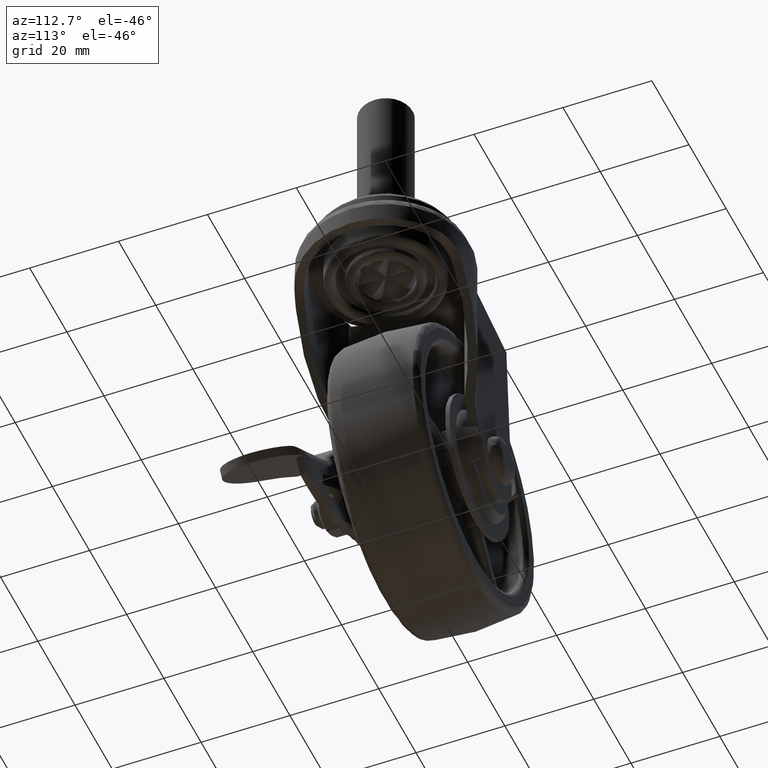
[diagram: clean part render]
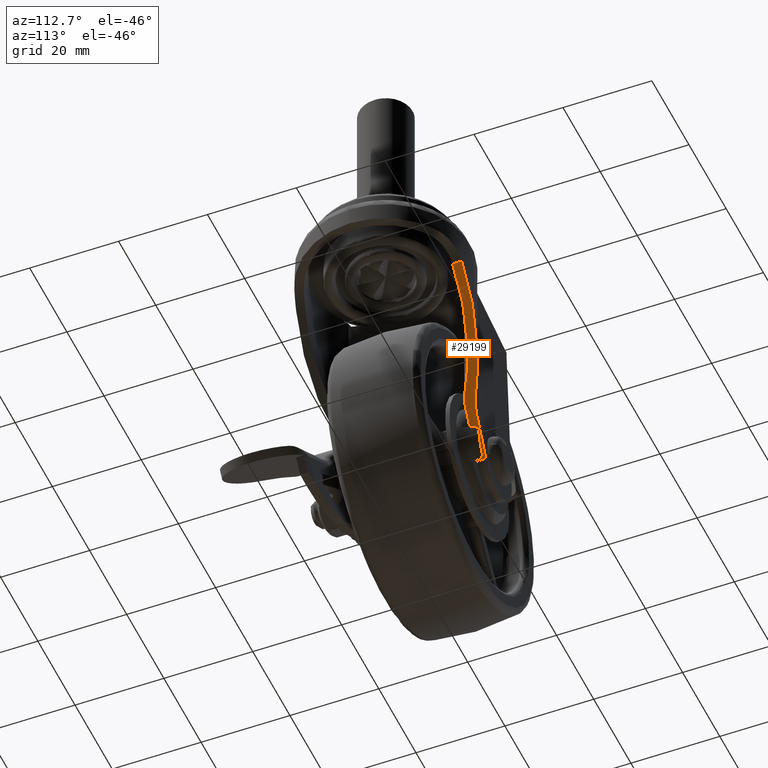
[diagram: same view with one face highlighted and labeled with its STEP entity id]
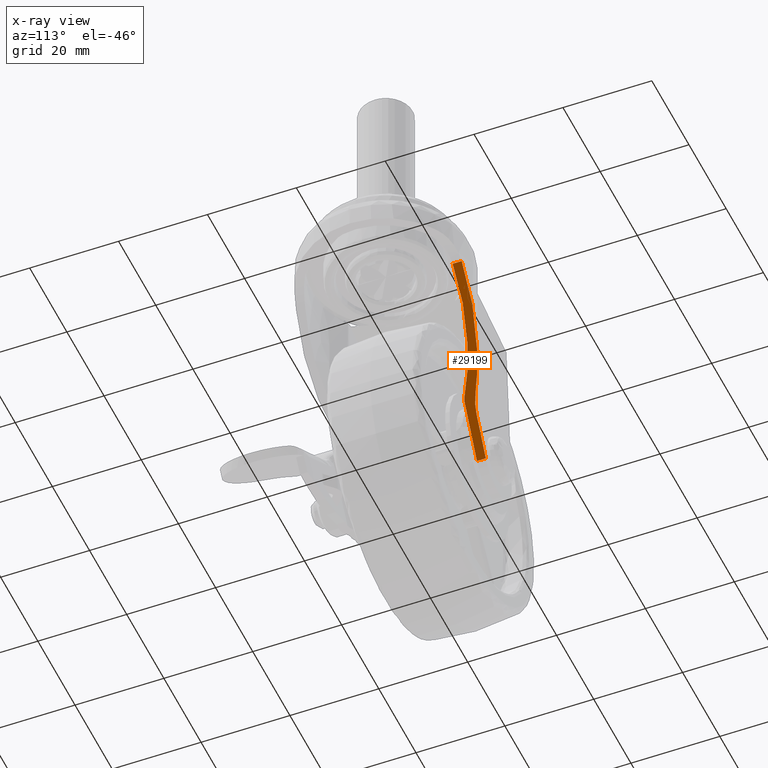
[diagram: x-ray of the same camera — body ghosted, the highlighted face saturated]
A machine part, auxiliary view. The second image highlights one B-rep face of the part: STEP entity #29199.
The next image is the same camera in x-ray: the body ghosted, the highlighted face saturated — about 0% of this face is hidden behind the body in this view.
In plain terms, the highlighted face is a freeform B-spline surface patch.
Its self-contained STEP definition (entity closure, byte-faithful):
#28799=CARTESIAN_POINT('',(13.302537420181221,13.212278166666680,7.495441232304141));
#28800=VERTEX_POINT('',#28799);
#28801=CARTESIAN_POINT('',(12.673274915486020,12.989471000000000,6.426265635622210));
#28802=VERTEX_POINT('',#28801);
#28803=CARTESIAN_POINT('',(13.302537420181221,13.212278166666680,7.495441232304141));
#28804=CARTESIAN_POINT('',(13.027351595094945,12.989471014923218,7.027874888306672));
#28805=CARTESIAN_POINT('',(12.673274957632851,12.989471000000000,6.426265707233631));
#28813=(BOUNDED_CURVE()B_SPLINE_CURVE(2,(#28803,#28804,#28805),.UNSPECIFIED.,.F.,.U.)CURVE()GEOMETRIC_REPRESENTATION_ITEM()QUASI_UNIFORM_CURVE()RATIONAL_B_SPLINE_CURVE((1.0,0.942653929036195,1.0))REPRESENTATION_ITEM(''));
#28814=EDGE_CURVE('',#28800,#28802,#28813,.T.);
#29125=CARTESIAN_POINT('',(28.815016485647192,12.689280747633729,33.852587792098923));
#29126=CARTESIAN_POINT('',(4.981249389495257,12.689280747633729,-6.643202066774914));
#29127=CARTESIAN_POINT('',(28.815016485647192,19.299476508982639,33.852587792098923));
#29128=CARTESIAN_POINT('',(4.981249389495257,19.299476508982639,-6.643202066774914));
#29129=B_SPLINE_SURFACE_WITH_KNOTS('',1,1,((#29125,#29127),(#29126,#29128)),.UNSPECIFIED.,.F.,.F.,.U.,(2,2),(2,2),(0.0,46.988907736695502),(0.0,6.610195761348914),.UNSPECIFIED.);
#29130=CARTESIAN_POINT('',(27.732648456351200,16.585154069266249,32.013543712851813));
#29131=VERTEX_POINT('',#29130);
#29132=CARTESIAN_POINT('',(27.732648456351232,16.585154069266249,32.013543712851742));
#29133=CARTESIAN_POINT('',(19.700895489298762,18.392777332158794,18.366847450360524));
#29134=CARTESIAN_POINT('',(13.302537420181221,13.212278166666680,7.495441232304126));
#29142=(BOUNDED_CURVE()B_SPLINE_CURVE(2,(#29132,#29133,#29134),.UNSPECIFIED.,.F.,.U.)CURVE()GEOMETRIC_REPRESENTATION_ITEM()QUASI_UNIFORM_CURVE()RATIONAL_B_SPLINE_CURVE((1.0,0.900017110385927,1.0))REPRESENTATION_ITEM(''));
#29143=EDGE_CURVE('',#29131,#28800,#29142,.T.);
#29144=ORIENTED_EDGE('',*,*,#29143,.T.);
#29145=ORIENTED_EDGE('',*,*,#28814,.T.);
#29146=CARTESIAN_POINT('',(6.063617999999909,12.989471000000020,-4.804157000000120));
#29147=VERTEX_POINT('',#29146);
#29148=CARTESIAN_POINT('',(12.673274915486020,12.989471000000000,6.426265635622210));
#29149=CARTESIAN_POINT('',(6.063617999999909,12.989471000000020,-4.804157000000120));
#29150=QUASI_UNIFORM_CURVE('',1,(#29148,#29149),.UNSPECIFIED.,.F.,.U.);
#29151=EDGE_CURVE('',#28802,#29147,#29150,.T.);
#29152=ORIENTED_EDGE('',*,*,#29151,.T.);
#29153=CARTESIAN_POINT('',(6.063617999999909,14.989471000000020,-4.804157000000120));
#29154=VERTEX_POINT('',#29153);
#29155=CARTESIAN_POINT('',(6.063617999999909,14.989471000000020,-4.804157000000120));
#29156=CARTESIAN_POINT('',(6.063617999999909,12.989471000000020,-4.804157000000120));
#29157=QUASI_UNIFORM_CURVE('',1,(#29155,#29156),.UNSPECIFIED.,.F.,.U.);
#29158=EDGE_CURVE('',#29154,#29147,#29157,.T.);
#29159=ORIENTED_EDGE('',*,*,#29158,.F.);
#29160=CARTESIAN_POINT('',(11.023097783363021,14.989471000000000,3.622461012426025));
#29161=VERTEX_POINT('',#29160);
#29162=CARTESIAN_POINT('',(11.023097783363021,14.989471000000000,3.622461012426025));
#29163=CARTESIAN_POINT('',(6.063617999999909,14.989471000000020,-4.804157000000120));
#29164=QUASI_UNIFORM_CURVE('',1,(#29162,#29163),.UNSPECIFIED.,.F.,.U.);
#29165=EDGE_CURVE('',#29161,#29154,#29164,.T.);
#29166=ORIENTED_EDGE('',*,*,#29165,.F.);
#29167=CARTESIAN_POINT('',(13.279950342778100,15.686954304347850,7.457063684333960));
#29168=VERTEX_POINT('',#29167);
#29169=CARTESIAN_POINT('',(11.023097783363021,14.989471000000000,3.622461012426025));
#29170=CARTESIAN_POINT('',(11.405539200772200,14.989319815252671,4.272264596150477));
#29171=CARTESIAN_POINT('',(12.170595084830730,15.097816972096560,5.572165790373909));
#29172=CARTESIAN_POINT('',(12.918325342626449,15.440087990975989,6.842629132096529));
#29173=CARTESIAN_POINT('',(13.279950342778100,15.686954304347850,7.457063684333960));
#29174=B_SPLINE_CURVE_WITH_KNOTS('',3,(#29169,#29170,#29171,#29172,#29173),.UNSPECIFIED.,.F.,.U.,(4,1,4),(-0.000022773857386,2.262064207855871,4.524146301168678),.UNSPECIFIED.);
#29175=EDGE_CURVE('',#29161,#29168,#29174,.T.);
#29176=ORIENTED_EDGE('',*,*,#29175,.T.);
#29177=CARTESIAN_POINT('',(27.732648456351200,18.629743302077451,32.013543712851813));
#29178=VERTEX_POINT('',#29177);
#29179=CARTESIAN_POINT('',(27.732648456351200,18.629743302077451,32.013543712851813));
#29180=CARTESIAN_POINT('',(19.886612134141863,20.201772228708087,18.682397325146173));
#29181=CARTESIAN_POINT('',(13.279950342778109,15.686954304347820,7.457063684333954));
#29189=(BOUNDED_CURVE()B_SPLINE_CURVE(2,(#29179,#29180,#29181),.UNSPECIFIED.,.F.,.U.)CURVE()GEOMETRIC_REPRESENTATION_ITEM()QUASI_UNIFORM_CURVE()RATIONAL_B_SPLINE_CURVE((1.0,0.921601156271804,1.0))REPRESENTATION_ITEM(''));
#29190=EDGE_CURVE('',#29178,#29168,#29189,.T.);
#29191=ORIENTED_EDGE('',*,*,#29190,.F.);
#29192=CARTESIAN_POINT('',(27.732648456351200,18.629743302077451,32.013543712851813));
#29193=CARTESIAN_POINT('',(27.732648456351200,16.585154069266249,32.013543712851813));
#29194=QUASI_UNIFORM_CURVE('',1,(#29192,#29193),.UNSPECIFIED.,.F.,.U.);
#29195=EDGE_CURVE('',#29178,#29131,#29194,.T.);
#29196=ORIENTED_EDGE('',*,*,#29195,.T.);
#29197=EDGE_LOOP('',(#29144,#29145,#29152,#29159,#29166,#29176,#29191,#29196));
#29198=FACE_OUTER_BOUND('',#29197,.T.);
#29199=ADVANCED_FACE('',(#29198),#29129,.T.);